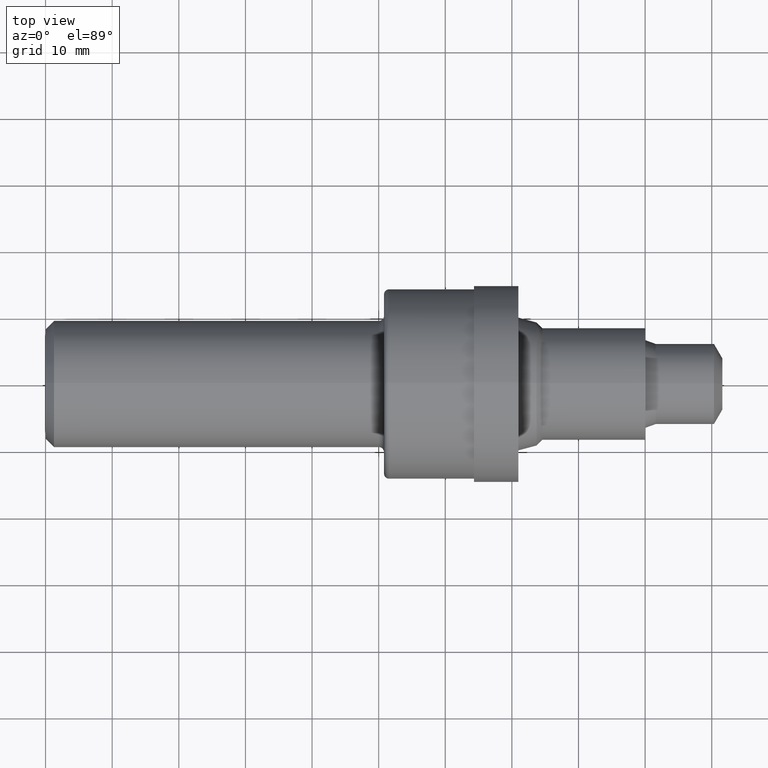
[diagram: clean part render]
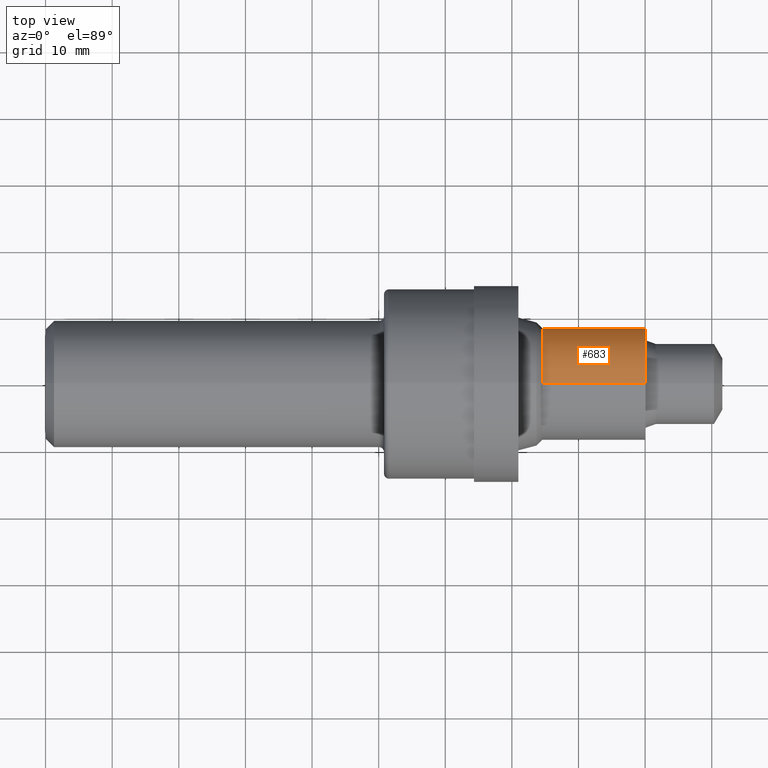
[diagram: same view with one face highlighted and labeled with its STEP entity id]
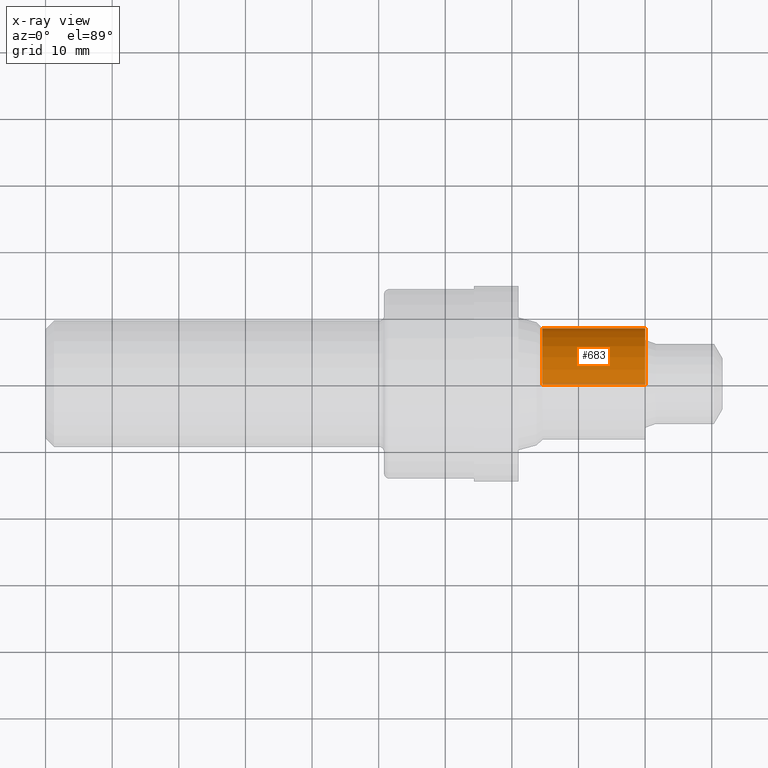
[diagram: x-ray of the same camera — body ghosted, the highlighted face saturated]
A machine part, top view. The second image highlights one B-rep face of the part: STEP entity #683.
The next image is the same camera in x-ray: the body ghosted, the highlighted face saturated — about 4% of this face is hidden behind the body in this view.
In plain terms, the highlighted cylindrical surface (partial cylindrical patch) has radius 8.4201 mm, axis along (-1, -0, -0).
Its self-contained STEP definition (entity closure, byte-faithful):
#62 = CYLINDRICAL_SURFACE ( 'NONE', #702, 0.3314999999999999059 ) ;
#75 = AXIS2_PLACEMENT_3D ( 'NONE', #453, #207, #144 ) ;
#93 = DIRECTION ( 'NONE',  ( -1.000000000000000000, -0.0000000000000000000, -0.0000000000000000000 ) ) ;
#125 = EDGE_LOOP ( 'NONE', ( #217, #256, #461, #644 ) ) ;
#132 = CARTESIAN_POINT ( 'NONE',  ( 0.0000000000000000000, 4.059704139173475521E-17, -0.3314999999999999059 ) ) ;
#144 = DIRECTION ( 'NONE',  ( 0.0000000000000000000, 0.0000000000000000000, 1.000000000000000000 ) ) ;
#147 = DIRECTION ( 'NONE',  ( -1.000000000000000000, -0.0000000000000000000, -0.0000000000000000000 ) ) ;
#151 = DIRECTION ( 'NONE',  ( -1.000000000000000000, -0.0000000000000000000, -0.0000000000000000000 ) ) ;
#170 = CARTESIAN_POINT ( 'NONE',  ( 0.0000000000000000000, 0.0000000000000000000, 0.3314999999999999059 ) ) ;
#178 = CIRCLE ( 'NONE', #511, 0.3314999999999999059 ) ;
#180 = EDGE_CURVE ( 'NONE', #746, #721, #286, .T. ) ;
#197 = CARTESIAN_POINT ( 'NONE',  ( 3.544000000000000039, 0.0000000000000000000, 0.0000000000000000000 ) ) ;
#207 = DIRECTION ( 'NONE',  ( -1.000000000000000000, -0.0000000000000000000, -0.0000000000000000000 ) ) ;
#209 = EDGE_CURVE ( 'NONE', #819, #721, #616, .T. ) ;
#217 = ORIENTED_EDGE ( 'NONE', *, *, #316, .T. ) ;
#256 = ORIENTED_EDGE ( 'NONE', *, *, #180, .T. ) ;
#282 = DIRECTION ( 'NONE',  ( 0.0000000000000000000, 0.0000000000000000000, 1.000000000000000000 ) ) ;
#286 = LINE ( 'NONE', #132, #597 ) ;
#311 = CARTESIAN_POINT ( 'NONE',  ( 2.935811487217439009, 0.0000000000000000000, 0.3314999999999999059 ) ) ;
#316 = EDGE_CURVE ( 'NONE', #590, #746, #178, .T. ) ;
#354 = CARTESIAN_POINT ( 'NONE',  ( 3.544000000000000039, 0.0000000000000000000, 0.3314999999999999059 ) ) ;
#397 = CARTESIAN_POINT ( 'NONE',  ( 3.544000000000000039, 4.059704139173475521E-17, -0.3314999999999999059 ) ) ;
#400 = FACE_OUTER_BOUND ( 'NONE', #125, .T. ) ;
#416 = DIRECTION ( 'NONE',  ( 0.0000000000000000000, 0.0000000000000000000, 1.000000000000000000 ) ) ;
#418 = VECTOR ( 'NONE', #93, 39.37007874015748143 ) ;
#453 = CARTESIAN_POINT ( 'NONE',  ( 2.935811487217439009, 0.0000000000000000000, 0.0000000000000000000 ) ) ;
#461 = ORIENTED_EDGE ( 'NONE', *, *, #209, .F. ) ;
#511 = AXIS2_PLACEMENT_3D ( 'NONE', #197, #541, #282 ) ;
#541 = DIRECTION ( 'NONE',  ( -1.000000000000000000, -0.0000000000000000000, -0.0000000000000000000 ) ) ;
#582 = LINE ( 'NONE', #170, #418 ) ;
#590 = VERTEX_POINT ( 'NONE', #354 ) ;
#597 = VECTOR ( 'NONE', #147, 39.37007874015748143 ) ;
#616 = CIRCLE ( 'NONE', #75, 0.3314999999999999059 ) ;
#644 = ORIENTED_EDGE ( 'NONE', *, *, #665, .F. ) ;
#645 = CARTESIAN_POINT ( 'NONE',  ( 0.0000000000000000000, 0.0000000000000000000, 0.0000000000000000000 ) ) ;
#665 = EDGE_CURVE ( 'NONE', #590, #819, #582, .T. ) ;
#683 = ADVANCED_FACE ( 'NONE', ( #400 ), #62, .T. ) ;
#699 = CARTESIAN_POINT ( 'NONE',  ( 2.935811487217439009, 4.266739787149714944E-17, -0.3314999999999999059 ) ) ;
#702 = AXIS2_PLACEMENT_3D ( 'NONE', #645, #151, #416 ) ;
#721 = VERTEX_POINT ( 'NONE', #699 ) ;
#746 = VERTEX_POINT ( 'NONE', #397 ) ;
#819 = VERTEX_POINT ( 'NONE', #311 ) ;